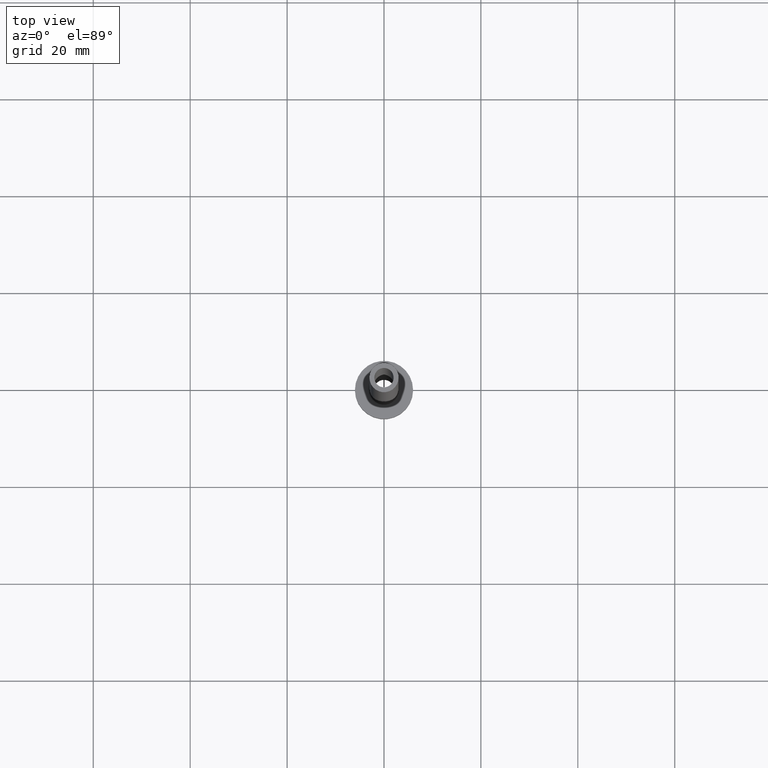
[diagram: clean part render]
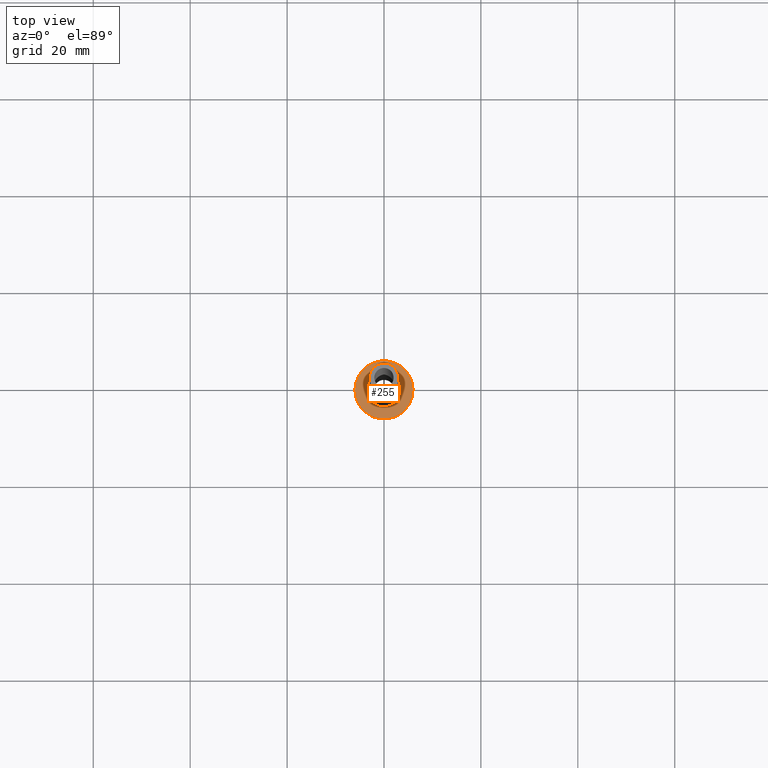
[diagram: same view with one face highlighted and labeled with its STEP entity id]
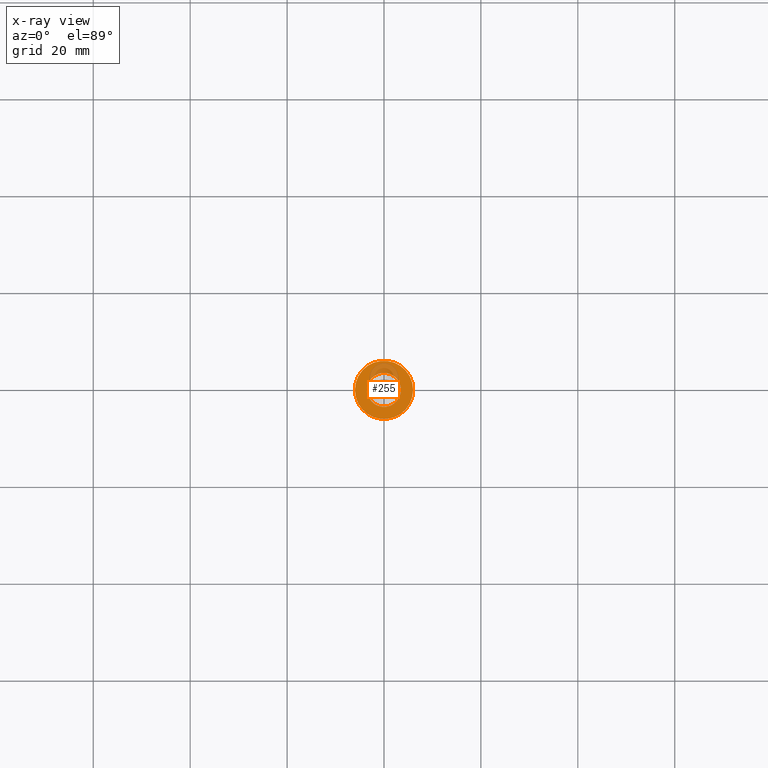
[diagram: x-ray of the same camera — body ghosted, the highlighted face saturated]
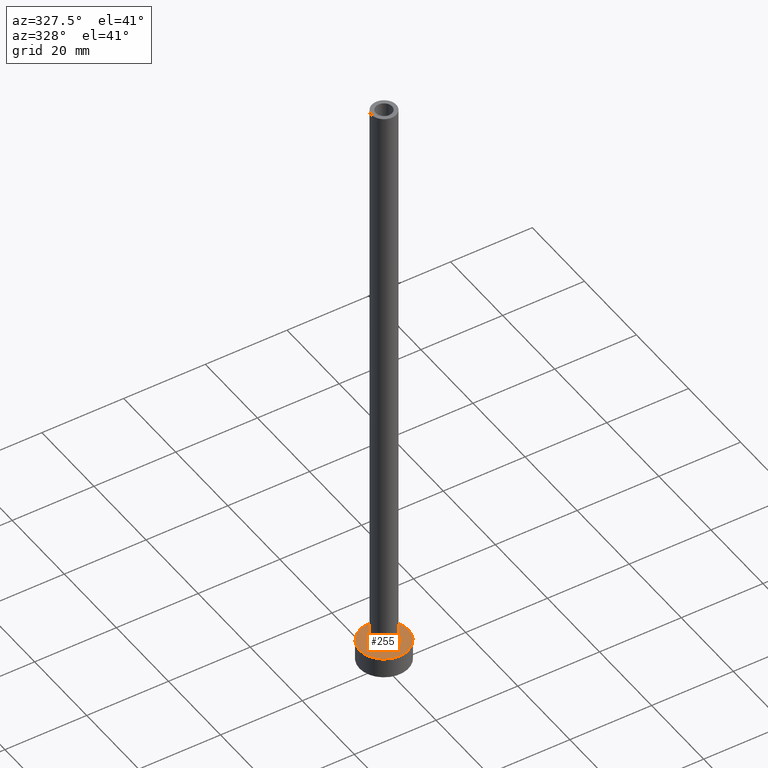
[diagram: same view with one face highlighted and labeled with its STEP entity id]
A machine part, top view. The second image highlights one B-rep face of the part: STEP entity #255.
The next image is the same camera in x-ray: the body ghosted, the highlighted face saturated — about 15% of this face is hidden behind the body in this view.
A second angle (auxiliary view) of the same face is appended — the face is thin or edge-on in the first view.
In plain terms, the highlighted planar face has unit normal (0, 0, 1).
Its self-contained STEP definition (entity closure, byte-faithful):
#9 = CARTESIAN_POINT ( 'NONE',  ( 0.000000000000000000, 0.000000000000000000, 5.000000000000000000 ) ) ;
#23 = DIRECTION ( 'NONE',  ( 1.000000000000000000, 0.000000000000000000, 0.000000000000000000 ) ) ;
#29 = VERTEX_POINT ( 'NONE', #212 ) ;
#49 = VERTEX_POINT ( 'NONE', #375 ) ;
#52 = EDGE_CURVE ( 'NONE', #284, #127, #138, .T. ) ;
#58 = ORIENTED_EDGE ( 'NONE', *, *, #157, .T. ) ;
#78 = DIRECTION ( 'NONE',  ( 0.000000000000000000, 0.000000000000000000, 1.000000000000000000 ) ) ;
#89 = ORIENTED_EDGE ( 'NONE', *, *, #340, .T. ) ;
#124 = CARTESIAN_POINT ( 'NONE',  ( 0.000000000000000000, 0.000000000000000000, 5.000000000000000000 ) ) ;
#127 = VERTEX_POINT ( 'NONE', #216 ) ;
#128 = CIRCLE ( 'NONE', #455, 3.500000000000000444 ) ;
#138 = CIRCLE ( 'NONE', #293, 3.500000000000000444 ) ;
#140 = DIRECTION ( 'NONE',  ( 1.000000000000000000, 0.000000000000000000, 0.000000000000000000 ) ) ;
#157 = EDGE_CURVE ( 'NONE', #127, #284, #128, .T. ) ;
#162 = ORIENTED_EDGE ( 'NONE', *, *, #52, .T. ) ;
#179 = CIRCLE ( 'NONE', #372, 6.000000000000000888 ) ;
#187 = CARTESIAN_POINT ( 'NONE',  ( 3.500000000000000444, 0.000000000000000000, 5.000000000000002665 ) ) ;
#191 = CIRCLE ( 'NONE', #448, 6.000000000000000888 ) ;
#204 = CARTESIAN_POINT ( 'NONE',  ( 0.000000000000000000, 0.000000000000000000, 5.000000000000000000 ) ) ;
#207 = DIRECTION ( 'NONE',  ( 1.000000000000000000, 0.000000000000000000, 0.000000000000000000 ) ) ;
#212 = CARTESIAN_POINT ( 'NONE',  ( 6.000000000000000888, 7.347880794884120722E-16, 5.000000000000000000 ) ) ;
#216 = CARTESIAN_POINT ( 'NONE',  ( -3.500000000000000444, 4.286263797015737088E-16, 5.000000000000002665 ) ) ;
#231 = DIRECTION ( 'NONE',  ( -0.000000000000000000, -0.000000000000000000, -1.000000000000000000 ) ) ;
#253 = DIRECTION ( 'NONE',  ( -0.000000000000000000, -0.000000000000000000, -1.000000000000000000 ) ) ;
#255 = ADVANCED_FACE ( 'NONE', ( #320, #291 ), #420, .T. ) ;
#284 = VERTEX_POINT ( 'NONE', #187 ) ;
#287 = DIRECTION ( 'NONE',  ( 0.000000000000000000, 0.000000000000000000, 1.000000000000000000 ) ) ;
#291 = FACE_OUTER_BOUND ( 'NONE', #316, .T. ) ;
#293 = AXIS2_PLACEMENT_3D ( 'NONE', #204, #231, #23 ) ;
#316 = EDGE_LOOP ( 'NONE', ( #326, #89 ) ) ;
#320 = FACE_BOUND ( 'NONE', #373, .T. ) ;
#326 = ORIENTED_EDGE ( 'NONE', *, *, #391, .T. ) ;
#333 = DIRECTION ( 'NONE',  ( 1.000000000000000000, 0.000000000000000000, -0.000000000000000000 ) ) ;
#340 = EDGE_CURVE ( 'NONE', #29, #49, #179, .T. ) ;
#372 = AXIS2_PLACEMENT_3D ( 'NONE', #124, #382, #207 ) ;
#373 = EDGE_LOOP ( 'NONE', ( #162, #58 ) ) ;
#375 = CARTESIAN_POINT ( 'NONE',  ( -6.000000000000000888, 0.000000000000000000, 5.000000000000000000 ) ) ;
#380 = CARTESIAN_POINT ( 'NONE',  ( 0.000000000000000000, 0.000000000000000000, 5.000000000000000000 ) ) ;
#382 = DIRECTION ( 'NONE',  ( 0.000000000000000000, 0.000000000000000000, 1.000000000000000000 ) ) ;
#391 = EDGE_CURVE ( 'NONE', #49, #29, #191, .T. ) ;
#393 = CARTESIAN_POINT ( 'NONE',  ( 0.000000000000000000, 0.000000000000000000, 5.000000000000000000 ) ) ;
#418 = DIRECTION ( 'NONE',  ( 1.000000000000000000, 0.000000000000000000, 0.000000000000000000 ) ) ;
#420 = PLANE ( 'NONE',  #431 ) ;
#431 = AXIS2_PLACEMENT_3D ( 'NONE', #393, #78, #333 ) ;
#448 = AXIS2_PLACEMENT_3D ( 'NONE', #380, #287, #140 ) ;
#455 = AXIS2_PLACEMENT_3D ( 'NONE', #9, #253, #418 ) ;